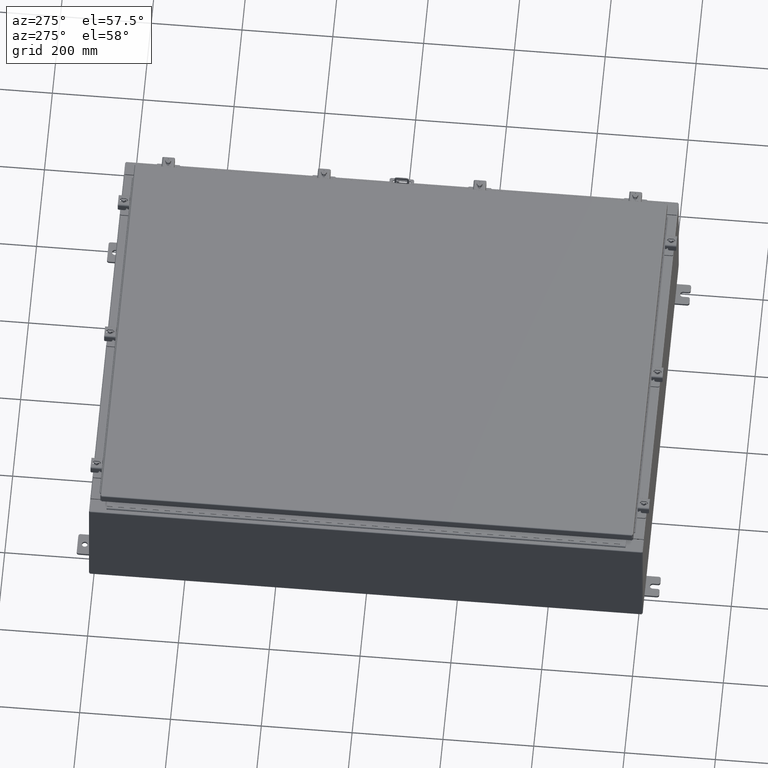
[diagram: clean part render]
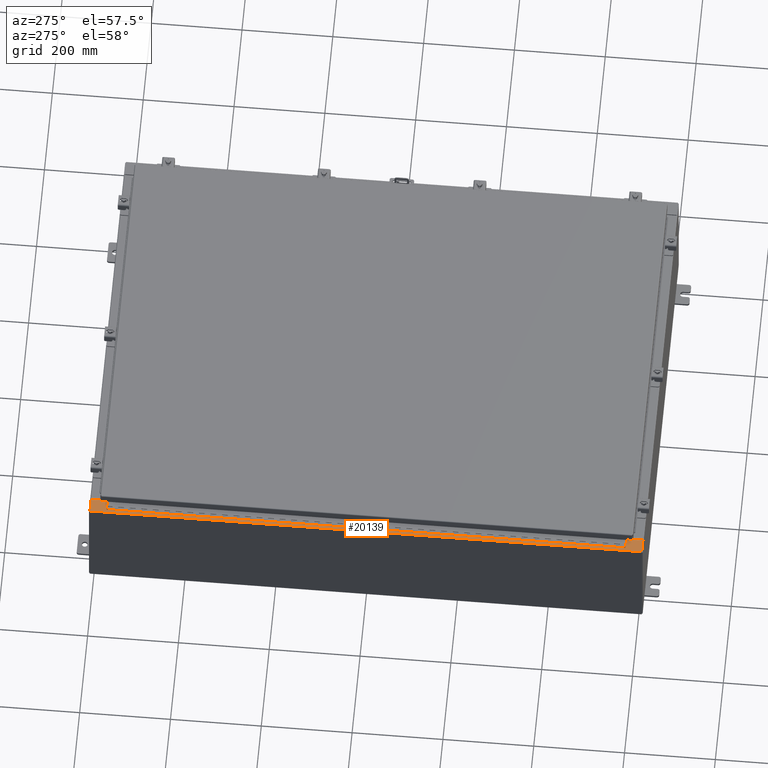
[diagram: same view with one face highlighted and labeled with its STEP entity id]
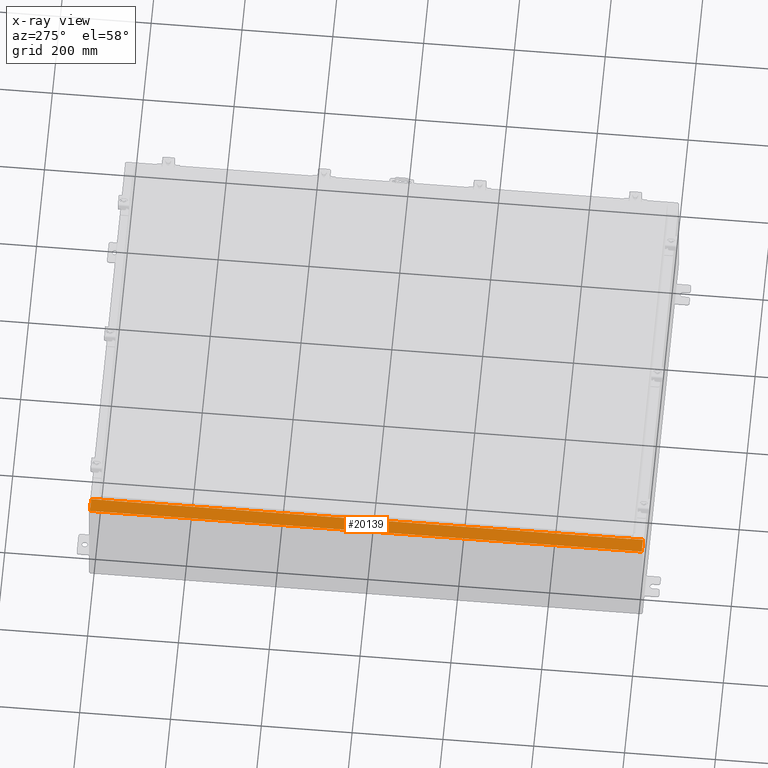
[diagram: x-ray of the same camera — body ghosted, the highlighted face saturated]
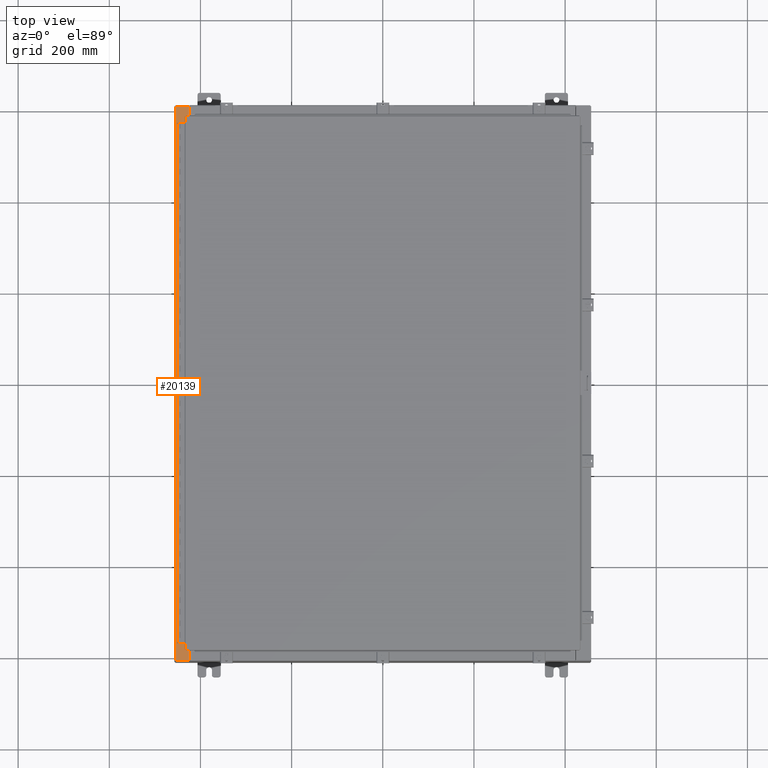
[diagram: same view with one face highlighted and labeled with its STEP entity id]
A machine part, auxiliary view. The second image highlights one B-rep face of the part: STEP entity #20139.
The next image is the same camera in x-ray: the body ghosted, the highlighted face saturated — about 0% of this face is hidden behind the body in this view.
A second angle (top view) of the same face is appended — the face is thin or edge-on in the first view.
In plain terms, the highlighted planar face has unit normal (0, 0, -1).
Its self-contained STEP definition (entity closure, byte-faithful):
#1477 = CARTESIAN_POINT ( 'NONE',  ( -16.69970000000003900, 22.63109999999999600, 9.925300000000007100 ) ) ;
#1512 = EDGE_CURVE ( 'NONE', #6820, #55167, #18132, .T. ) ;
#1677 = DIRECTION ( 'NONE',  ( -3.203758888773074600E-031, 1.000000000000000000, -2.285165089420047000E-045 ) ) ;
#2553 = CARTESIAN_POINT ( 'NONE',  ( -16.69970000000003900, 0.0000000000000000000, 9.925300000000007100 ) ) ;
#2796 = VERTEX_POINT ( 'NONE', #24316 ) ;
#4236 = LINE ( 'NONE', #17979, #25574 ) ;
#4643 = CARTESIAN_POINT ( 'NONE',  ( -16.75005000000004100, 22.61242499999999100, 9.925300000000008900 ) ) ;
#4892 = PLANE ( 'NONE',  #39815 ) ;
#5814 = CARTESIAN_POINT ( 'NONE',  ( -16.69970000000003900, 0.0000000000000000000, 9.925300000000007100 ) ) ;
#6033 = ORIENTED_EDGE ( 'NONE', *, *, #28826, .F. ) ;
#6523 = CARTESIAN_POINT ( 'NONE',  ( -16.69970000000003900, -22.63109999999999600, 9.925300000000007100 ) ) ;
#6575 = LINE ( 'NONE', #8804, #26537 ) ;
#6747 = LINE ( 'NONE', #17834, #49511 ) ;
#6820 = VERTEX_POINT ( 'NONE', #33616 ) ;
#7018 = EDGE_CURVE ( 'NONE', #38160, #37980, #53598, .T. ) ;
#7540 = EDGE_CURVE ( 'NONE', #30829, #23517, #6747, .T. ) ;
#7658 = LINE ( 'NONE', #10579, #17608 ) ;
#8804 = CARTESIAN_POINT ( 'NONE',  ( -1.563823601129229200E-013, -23.92530000000005300, 9.925300000000126100 ) ) ;
#8921 = DIRECTION ( 'NONE',  ( 1.000000000000000000, 0.0000000000000000000, 0.0000000000000000000 ) ) ;
#8998 = DIRECTION ( 'NONE',  ( 7.132762385546384700E-015, 0.0000000000000000000, -1.000000000000000000 ) ) ;
#9037 = DIRECTION ( 'NONE',  ( -1.000000000000000000, 0.0000000000000000000, 0.0000000000000000000 ) ) ;
#9178 = DIRECTION ( 'NONE',  ( -1.000000000000000000, 0.0000000000000000000, -7.132762385546384700E-015 ) ) ;
#9484 = ORIENTED_EDGE ( 'NONE', *, *, #7540, .F. ) ;
#9778 = ORIENTED_EDGE ( 'NONE', *, *, #20481, .F. ) ;
#10579 = CARTESIAN_POINT ( 'NONE',  ( -7.105562016124465400E-014, 23.92529999999998900, 9.925300000000126100 ) ) ;
#10973 = ORIENTED_EDGE ( 'NONE', *, *, #7018, .T. ) ;
#11237 = ORIENTED_EDGE ( 'NONE', *, *, #42114, .F. ) ;
#11528 = CARTESIAN_POINT ( 'NONE',  ( -16.75005000000004100, -22.61242499999998400, 9.925300000000008900 ) ) ;
#11579 = CARTESIAN_POINT ( 'NONE',  ( -16.75005000000004100, 22.63109999999999300, 9.925300000000007100 ) ) ;
#12420 = ORIENTED_EDGE ( 'NONE', *, *, #1512, .F. ) ;
#13076 = AXIS2_PLACEMENT_3D ( 'NONE', #4643, #34495, #8921 ) ;
#14622 = DIRECTION ( 'NONE',  ( 1.000000000000000000, -8.681145560800197900E-014, -4.340572780400098900E-014 ) ) ;
#14927 = VERTEX_POINT ( 'NONE', #48404 ) ;
#15362 = LINE ( 'NONE', #55087, #38122 ) ;
#15807 = DIRECTION ( 'NONE',  ( 1.000000000000000000, 0.0000000000000000000, 0.0000000000000000000 ) ) ;
#16518 = ORIENTED_EDGE ( 'NONE', *, *, #34813, .T. ) ;
#17608 = VECTOR ( 'NONE', #27738, 39.37007874015748100 ) ;
#17834 = CARTESIAN_POINT ( 'NONE',  ( -17.91230000000004100, 23.92529999999998900, 9.925300000000000000 ) ) ;
#17979 = CARTESIAN_POINT ( 'NONE',  ( -16.75005000000004100, 22.59374999999999300, 9.925300000000008900 ) ) ;
#18132 = LINE ( 'NONE', #35941, #39578 ) ;
#20139 = ADVANCED_FACE ( 'NONE', ( #36247 ), #4892, .F. ) ;
#20481 = EDGE_CURVE ( 'NONE', #14927, #25892, #41570, .T. ) ;
#23517 = VERTEX_POINT ( 'NONE', #24795 ) ;
#23984 = VECTOR ( 'NONE', #9037, 39.37007874015748100 ) ;
#24316 = CARTESIAN_POINT ( 'NONE',  ( -16.75005000000004100, 22.59374999999999300, 9.925300000000007100 ) ) ;
#24795 = CARTESIAN_POINT ( 'NONE',  ( -17.91230000000004100, 23.92529999999998900, 9.925300000000000000 ) ) ;
#24892 = EDGE_CURVE ( 'NONE', #46972, #55167, #31698, .T. ) ;
#25387 = CARTESIAN_POINT ( 'NONE',  ( -16.69970000000003900, -23.92529999999998600, 9.925300000000007100 ) ) ;
#25558 = CARTESIAN_POINT ( 'NONE',  ( -16.69970000000003900, 23.92529999999998900, 9.925300000000007100 ) ) ;
#25574 = VECTOR ( 'NONE', #34244, 39.37007874015748100 ) ;
#25892 = VERTEX_POINT ( 'NONE', #43175 ) ;
#26132 = CARTESIAN_POINT ( 'NONE',  ( -7.105562016124465400E-014, 0.0000000000000000000, 9.925300000000126100 ) ) ;
#26537 = VECTOR ( 'NONE', #38695, 39.37007874015748100 ) ;
#27294 = VECTOR ( 'NONE', #32404, 39.37007874015748100 ) ;
#27738 = DIRECTION ( 'NONE',  ( -1.000000000000000000, -8.144358738339254500E-032, -7.132762385546384700E-015 ) ) ;
#28560 = DIRECTION ( 'NONE',  ( -0.0000000000000000000, -1.000000000000000000, -0.0000000000000000000 ) ) ;
#28826 = EDGE_CURVE ( 'NONE', #31161, #6820, #33652, .T. ) ;
#29092 = CARTESIAN_POINT ( 'NONE',  ( -17.91230000000004100, -23.92529999999998600, 9.925300000000000000 ) ) ;
#29441 = DIRECTION ( 'NONE',  ( -1.000000000000000000, -8.681145560800197900E-014, 4.340572780400098900E-014 ) ) ;
#30143 = VECTOR ( 'NONE', #28560, 39.37007874015748100 ) ;
#30829 = VERTEX_POINT ( 'NONE', #29092 ) ;
#30881 = EDGE_CURVE ( 'NONE', #38160, #52736, #15362, .T. ) ;
#31161 = VERTEX_POINT ( 'NONE', #39933 ) ;
#31445 = EDGE_CURVE ( 'NONE', #25892, #31161, #35351, .T. ) ;
#31698 = LINE ( 'NONE', #2553, #27294 ) ;
#32404 = DIRECTION ( 'NONE',  ( -3.203758888773074600E-031, 1.000000000000000000, -2.285165089420047000E-045 ) ) ;
#32728 = ORIENTED_EDGE ( 'NONE', *, *, #45939, .F. ) ;
#33124 = ORIENTED_EDGE ( 'NONE', *, *, #30881, .F. ) ;
#33616 = CARTESIAN_POINT ( 'NONE',  ( -16.75005000000004100, -22.63109999999998200, 9.925300000000007100 ) ) ;
#33652 = CIRCLE ( 'NONE', #42675, 0.01867499999999949400 ) ;
#34244 = DIRECTION ( 'NONE',  ( 1.000000000000000000, 0.0000000000000000000, 0.0000000000000000000 ) ) ;
#34495 = DIRECTION ( 'NONE',  ( -7.132762385546384700E-015, -0.0000000000000000000, 1.000000000000000000 ) ) ;
#34813 = EDGE_CURVE ( 'NONE', #30829, #46972, #6575, .T. ) ;
#35351 = LINE ( 'NONE', #38920, #23984 ) ;
#35941 = CARTESIAN_POINT ( 'NONE',  ( -16.75005000000004100, -22.63109999999998200, 9.925300000000008900 ) ) ;
#36247 = FACE_OUTER_BOUND ( 'NONE', #38029, .T. ) ;
#37665 = ORIENTED_EDGE ( 'NONE', *, *, #24892, .T. ) ;
#37980 = VERTEX_POINT ( 'NONE', #25558 ) ;
#38029 = EDGE_LOOP ( 'NONE', ( #33124, #10973, #46852, #9484, #16518, #37665, #12420, #6033, #54245, #9778, #11237, #32728 ) ) ;
#38122 = VECTOR ( 'NONE', #29441, 39.37007874015748100 ) ;
#38160 = VERTEX_POINT ( 'NONE', #1477 ) ;
#38404 = CIRCLE ( 'NONE', #13076, 0.01867499999999949400 ) ;
#38695 = DIRECTION ( 'NONE',  ( 1.000000000000000000, -3.566381192773193100E-015, 7.132762385546384700E-015 ) ) ;
#38920 = CARTESIAN_POINT ( 'NONE',  ( -16.71270000000004100, -22.59374999999998200, 9.925300000000008900 ) ) ;
#39578 = VECTOR ( 'NONE', #14622, 39.37007874015748100 ) ;
#39815 = AXIS2_PLACEMENT_3D ( 'NONE', #26132, #8998, #9178 ) ;
#39933 = CARTESIAN_POINT ( 'NONE',  ( -16.75005000000004100, -22.59374999999998200, 9.925300000000007100 ) ) ;
#41430 = DIRECTION ( 'NONE',  ( -7.132762385546384700E-015, -0.0000000000000000000, 1.000000000000000000 ) ) ;
#41570 = LINE ( 'NONE', #45584, #30143 ) ;
#42114 = EDGE_CURVE ( 'NONE', #2796, #14927, #4236, .T. ) ;
#42207 = VECTOR ( 'NONE', #1677, 39.37007874015748100 ) ;
#42675 = AXIS2_PLACEMENT_3D ( 'NONE', #11528, #41430, #15807 ) ;
#43175 = CARTESIAN_POINT ( 'NONE',  ( -16.71270000000004100, -22.59374999999998200, 9.925300000000008900 ) ) ;
#45584 = CARTESIAN_POINT ( 'NONE',  ( -16.71270000000004100, 22.59374999999999300, 9.925300000000008900 ) ) ;
#45939 = EDGE_CURVE ( 'NONE', #52736, #2796, #38404, .T. ) ;
#46086 = EDGE_CURVE ( 'NONE', #37980, #23517, #7658, .T. ) ;
#46852 = ORIENTED_EDGE ( 'NONE', *, *, #46086, .T. ) ;
#46972 = VERTEX_POINT ( 'NONE', #25387 ) ;
#48404 = CARTESIAN_POINT ( 'NONE',  ( -16.71270000000004100, 22.59374999999999300, 9.925300000000008900 ) ) ;
#49511 = VECTOR ( 'NONE', #52073, 39.37007874015748100 ) ;
#52073 = DIRECTION ( 'NONE',  ( -0.0000000000000000000, 1.000000000000000000, -0.0000000000000000000 ) ) ;
#52736 = VERTEX_POINT ( 'NONE', #11579 ) ;
#53598 = LINE ( 'NONE', #5814, #42207 ) ;
#54245 = ORIENTED_EDGE ( 'NONE', *, *, #31445, .F. ) ;
#55087 = CARTESIAN_POINT ( 'NONE',  ( -16.69970000000003900, 22.63109999999999600, 9.925300000000007100 ) ) ;
#55167 = VERTEX_POINT ( 'NONE', #6523 ) ;